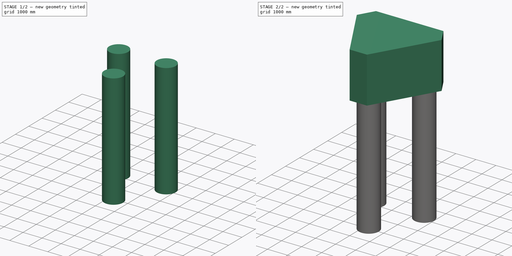
[diagram: build sequence overview — one tinted view per stage of 2, left to right]
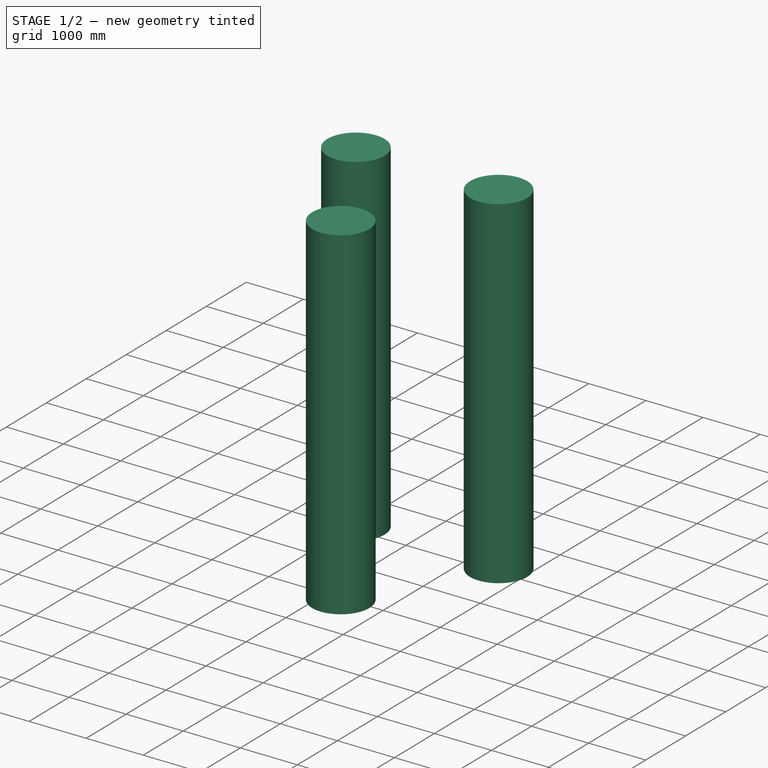
[diagram: stage 1 of 2 — iso view after this stage's code; geometry added in this stage tinted green]
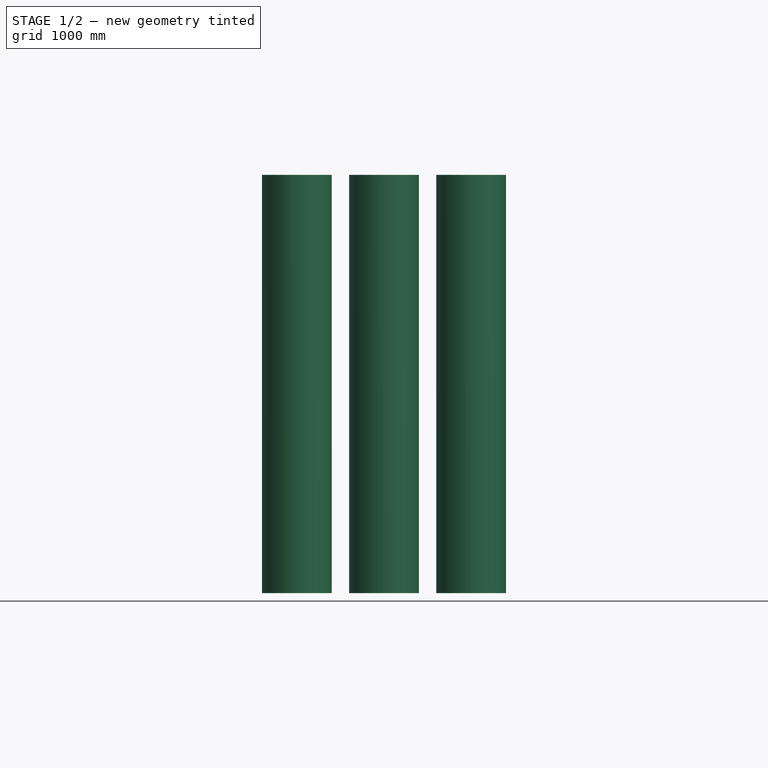
[diagram: stage 1 of 2 — front view after this stage's code; geometry added in this stage tinted green]
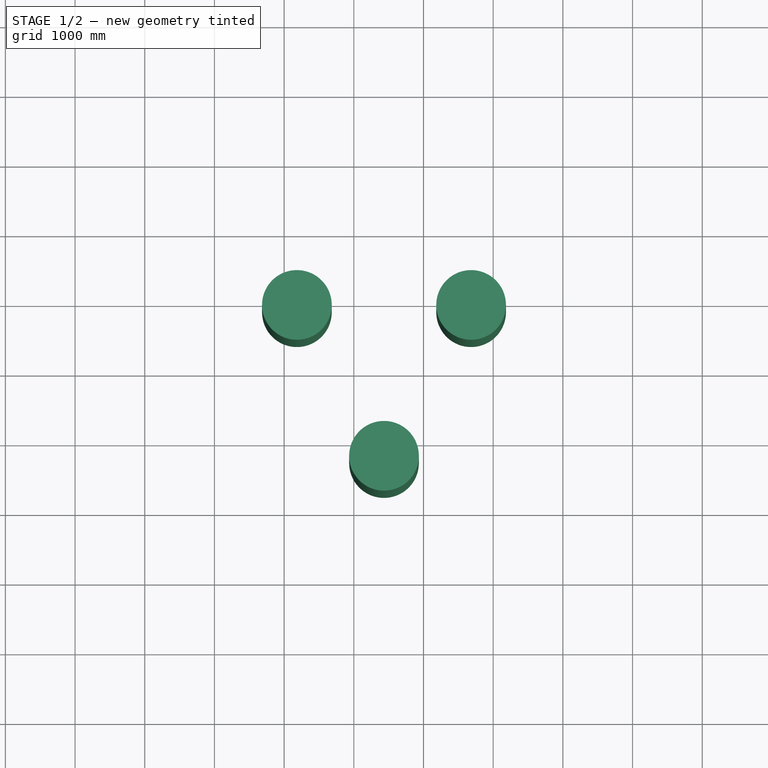
[diagram: stage 1 of 2 — top view after this stage's code; geometry added in this stage tinted green]
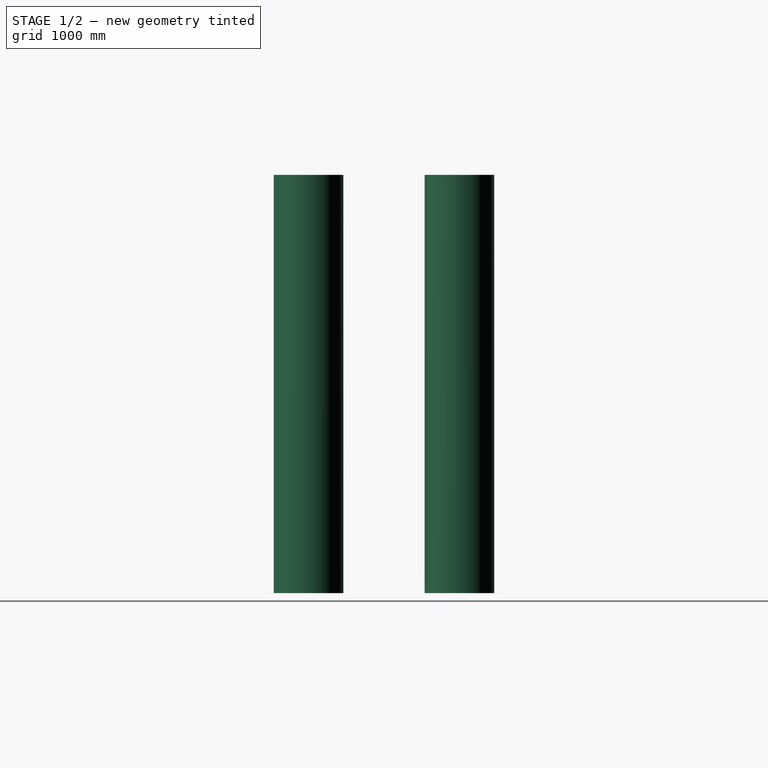
[diagram: stage 1 of 2 — right view after this stage's code; geometry added in this stage tinted green]
FCSTD DOCUMENT  (FreeCAD 0.16R6704 (Git))
Label: Block_and_3_pile_assembly
License: All rights reserved
LicenseURL: http://en.wikipedia.org/wiki/All_rights_reserved
objects: Sketcher::SketchObject×2, Part::FeaturePython×1, Part::Extrusion×1, Part::MultiFuse×1
note: 5 computed .brp shape members not serialized (recipe doc carries the construction recipe); baked Part::Feature solids carry a one-line shape summary decoded from their .brp

FEATURE [Sketcher::SketchObject] Sketch303  label="Block_dimensions "
  sketch-geometry (6):
    g0: LineSegment StartX=0 StartY=0 StartZ=0 EndX=866 EndY=0 EndZ=0
    g1: LineSegment StartX=-1683 StartY=2915.04 StartZ=0 EndX=0 EndY=0 EndZ=0
    g2: LineSegment StartX=866 StartY=0 StartZ=0 EndX=2549 EndY=2915.04 EndZ=0
    g3: LineSegment StartX=2549 StartY=2915.04 StartZ=0 EndX=2116 EndY=3665.02 EndZ=0
    g4: LineSegment StartX=2116 StartY=3665.02 StartZ=0 EndX=-1250 EndY=3665.02 EndZ=0
    g5: LineSegment StartX=-1250 StartY=3665.02 StartZ=0 EndX=-1683 EndY=2915.04 EndZ=0
  constraints (18):
    c: Horizontal(g4)
    c: Angle(g1) = -1.0472
    c: Angle(g2) = 1.0472
    c: Angle(g3) = 2.0944
    c: Angle(g5) = -2.0944
    c: Horizontal(g0)
    c: Coincident(g4,g5)
    c: Coincident(g3,g4)
    c: Coincident(g2,g3)
    c: Coincident(g0,g2)
    c: Coincident(g0,g1)
    c: Coincident(g1,g5)
    c: DistanceX(g4,g4) = 3366  'Larger_side'
    c: Equal(g4,g2)
    c: Equal(g2,g1)
    c: DistanceX(g0,g0) = 866  'Minor_side'
    c: DistanceX(g0) = 0
    c: DistanceY(g0) = 0
FEATURE [Part::FeaturePython] Structure062  label="Block_height"  # WARN: FeaturePython — macro-defined, semantics opaque (R4)
  Base = -> Sketch303
  Height = 2300
  Length = 0
  MoveWithHost = false
  Normal = (0,0,0)
  Role = 1
  Width = 100
FEATURE [Sketcher::SketchObject] Sketch304  label="Sketch_piles"
  ExternalGeometry = -> [Structure062]
  Placement = pos=(0,0,0) rot=(1,0,0;3.14159rad)
  Support = -> Structure062 [Face7]
  sketch-geometry (8):
    g0: Circle CenterX=433 CenterY=-750 CenterZ=0 NormalX=0 NormalY=0 NormalZ=1 Radius=500
    g1: Circle CenterX=-817 CenterY=-2915.02 CenterZ=0 NormalX=0 NormalY=0 NormalZ=1 Radius=500
    g2: Circle CenterX=1683 CenterY=-2915.02 CenterZ=0 NormalX=0 NormalY=0 NormalZ=1 Radius=500
    g3: LineSegment [constr] StartX=433 StartY=-23762 StartZ=0 EndX=433 EndY=-29191.7 EndZ=0
    g4: LineSegment [constr] StartX=10714.7 StartY=-750 StartZ=0 EndX=14373 EndY=-750 EndZ=0
    g5: LineSegment [constr] StartX=9946 StartY=-2915.02 StartZ=0 EndX=15632.2 EndY=-2915.02 EndZ=0
    g6: LineSegment [constr] StartX=1683 StartY=-26426 StartZ=0 EndX=1683 EndY=-28706 EndZ=0
    g7: LineSegment [constr] StartX=-817 StartY=-26345.4 StartZ=0 EndX=-817 EndY=-28413.1 EndZ=0
  constraints (19):
    c: Radius(g0) = 500  'Pile_radius'
    c: Equal(g0,g1)
    c: Equal(g0,g2)
    c: Vertical(g3)
    c: Horizontal(g4)
    c: Horizontal(g5)
    c: Vertical(g6)
    c: Vertical(g7)
    c: PointOnObject(g0,g3)
    c: PointOnObject(g0,g4)
    c: PointOnObject(g1,g5)
    c: PointOnObject(g1,g7)
    c: PointOnObject(g2,g6)
    c: PointOnObject(g2,g5)
    c: DistanceY(g-5,g5) = 750  'Horizontal_axis_02'
    c: DistanceY(g4,g-8) = 750  'Horizontal_axis_01'
    c: Symmetric(g-8,g-8,g3)
    c: DistanceX(g7,g3) = 1250  'Vertical_axis_01'
    c: DistanceX(g3,g6) = 1250  'Vertical_axis_02'
FEATURE [Part::Extrusion] Extrude_Sketch  label="3_piles_assembly_height"
  Base = -> Sketch304
  Dir = (0,0,-6000)
  Placement = pos=(0,0,50) rot=(0,0,1;0rad)
  Solid = true
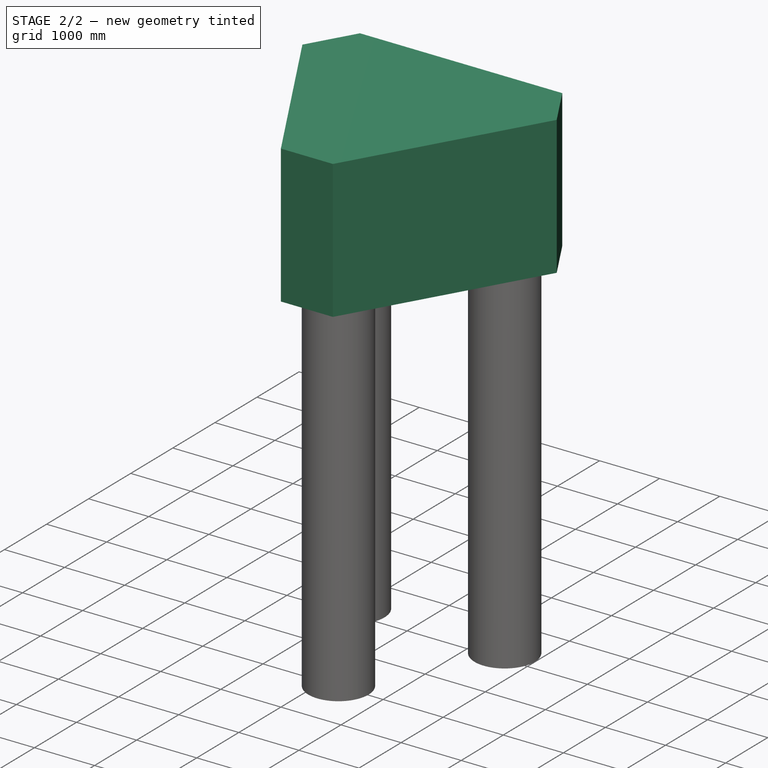
[diagram: stage 2 of 2 — iso view after this stage's code; geometry added in this stage tinted green]
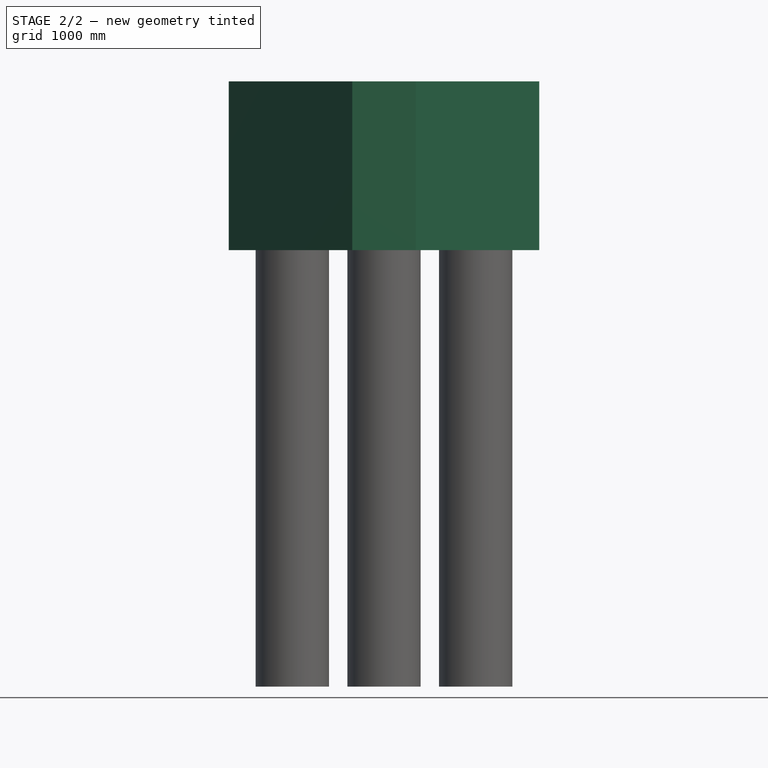
[diagram: stage 2 of 2 — front view after this stage's code; geometry added in this stage tinted green]
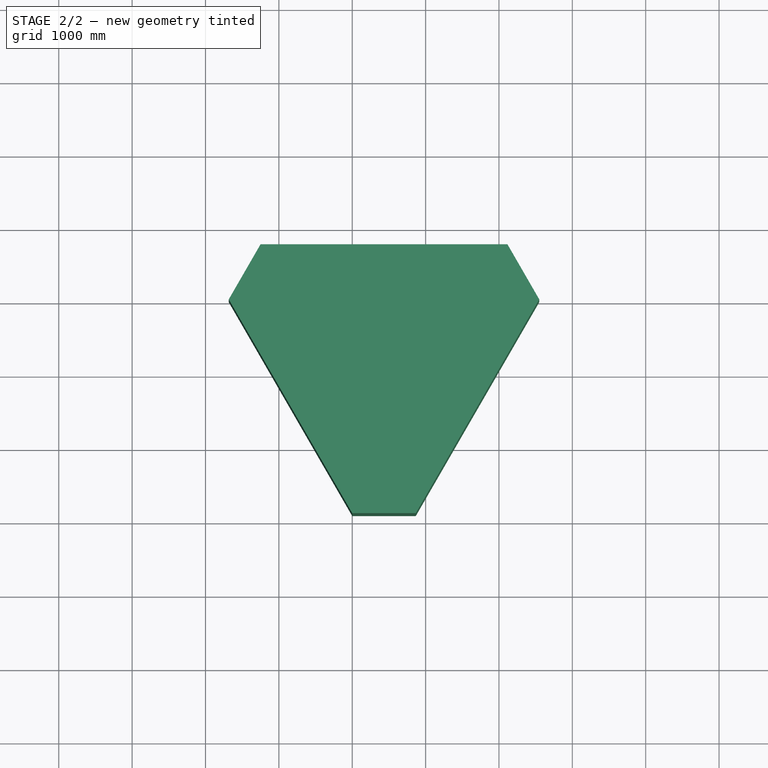
[diagram: stage 2 of 2 — top view after this stage's code; geometry added in this stage tinted green]
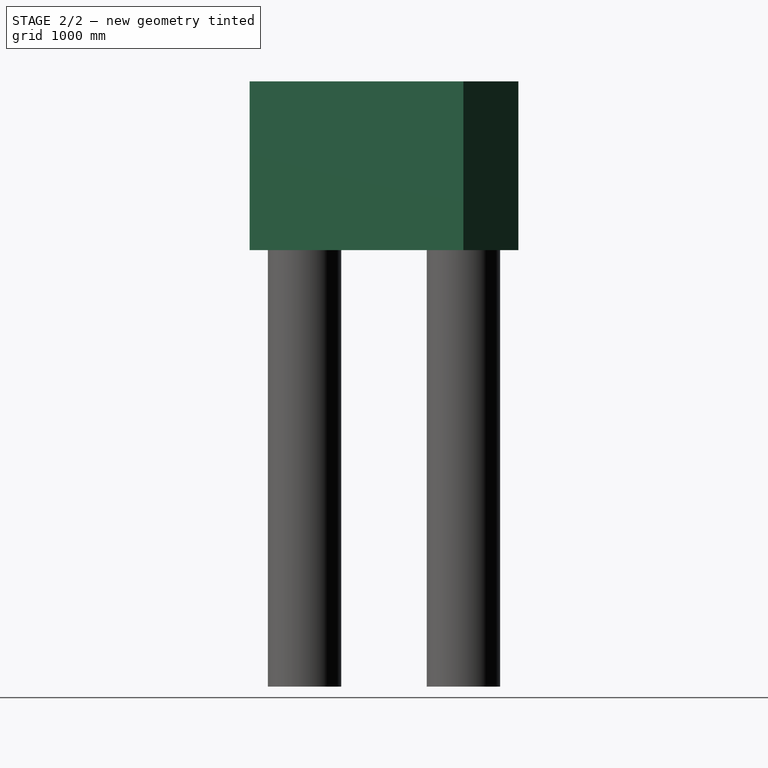
[diagram: stage 2 of 2 — right view after this stage's code; geometry added in this stage tinted green]
FEATURE [Part::MultiFuse] Fusion065  label="Bloco_and_3_pile_assembly"
  Shapes = -> [Structure062,Extrude_Sketch]
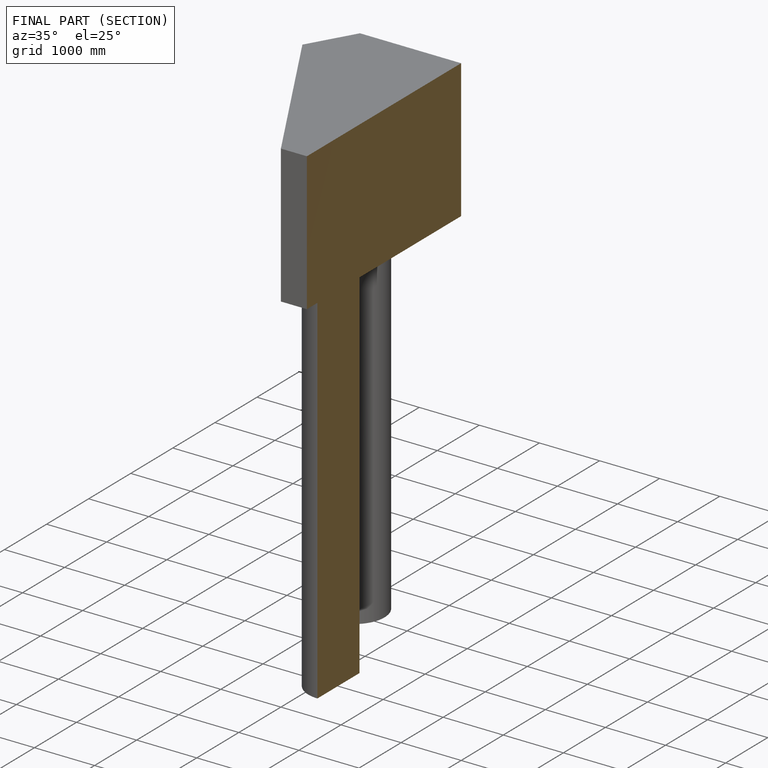
[diagram: finished part — half-section view (interior)]
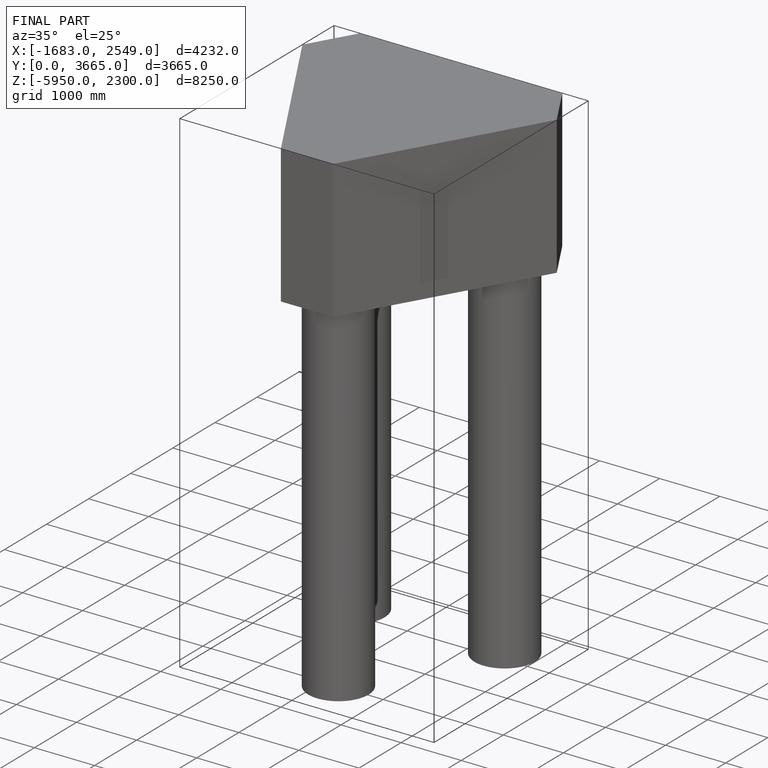
[diagram: finished part — iso view with bounding-box wireframe]
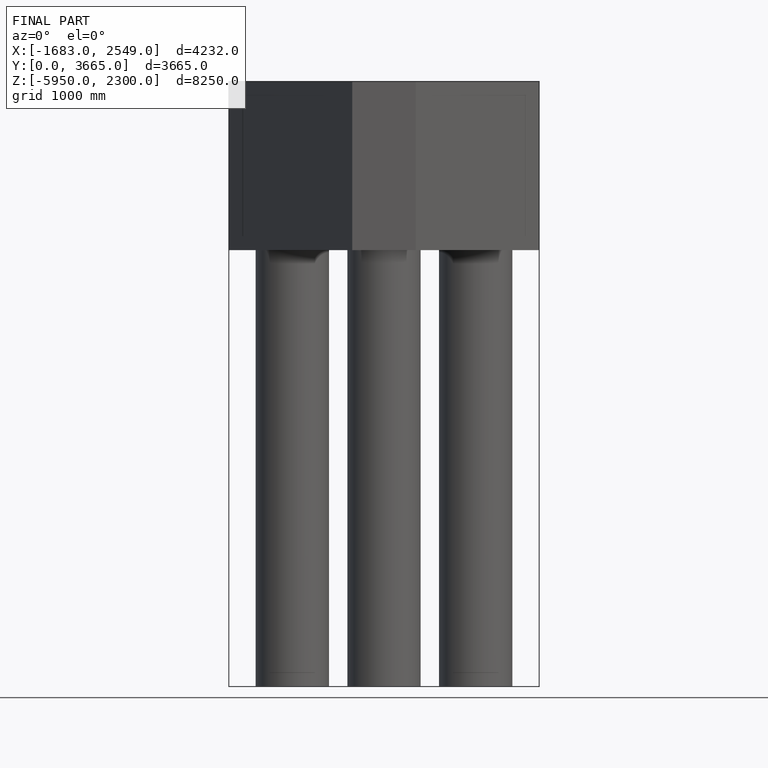
[diagram: finished part — front view with bounding-box wireframe]
